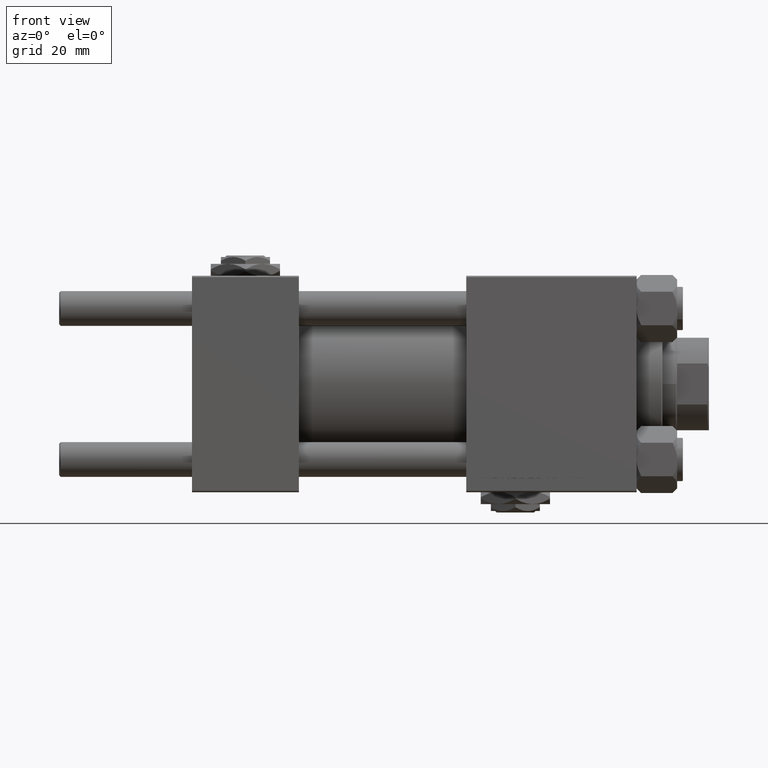
[diagram: clean part render]
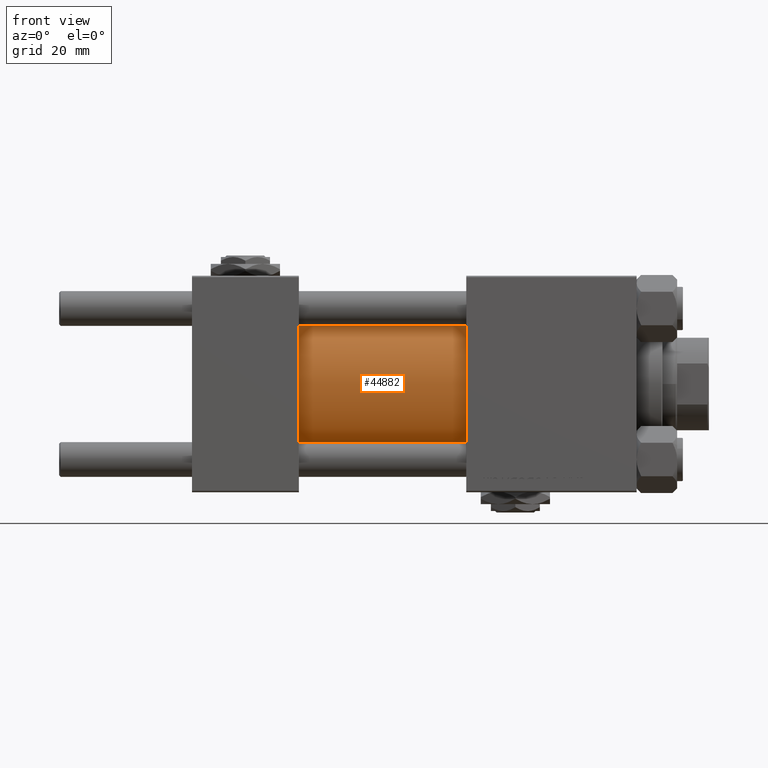
[diagram: same view with one face highlighted and labeled with its STEP entity id]
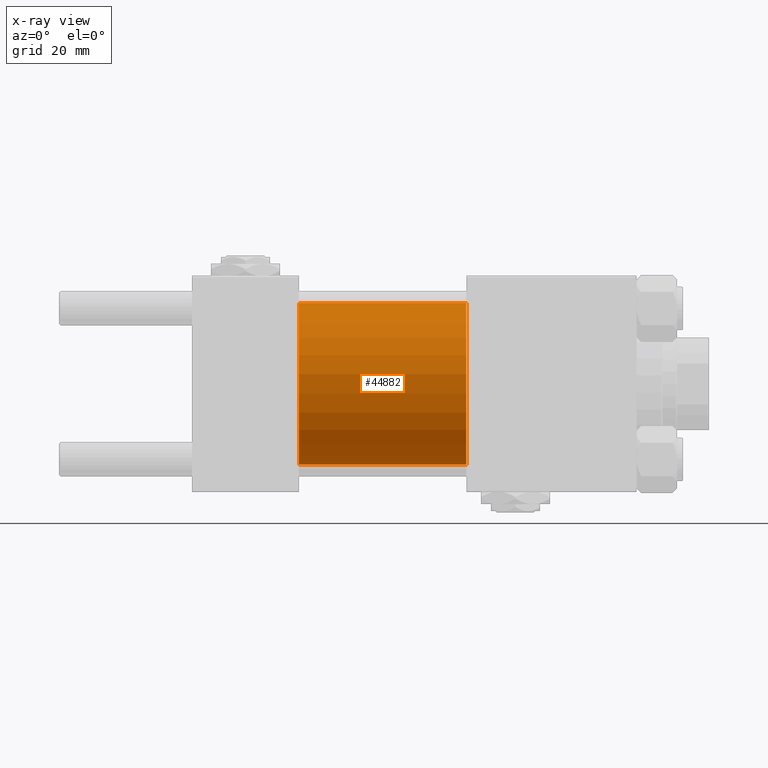
[diagram: x-ray of the same camera — body ghosted, the highlighted face saturated]
A machine part, front view. The second image highlights one B-rep face of the part: STEP entity #44882.
The next image is the same camera in x-ray: the body ghosted, the highlighted face saturated — about 2% of this face is hidden behind the body in this view.
In plain terms, the highlighted cylindrical surface (partial cylindrical patch) has radius 28 mm, axis along (-1, -0, -0).
Its self-contained STEP definition (entity closure, byte-faithful):
#201 = ORIENTED_EDGE ( 'NONE', *, *, #51417, .T. ) ;
#562 = DIRECTION ( 'NONE',  ( 1.000000000000000000, -0.000000000000000000, 0.000000000000000000 ) ) ;
#2357 = CARTESIAN_POINT ( 'NONE',  ( 95.00000000000000000, 0.000000000000000000, 28.00000000000000000 ) ) ;
#3750 = CARTESIAN_POINT ( 'NONE',  ( 95.00000000000000000, 3.429011037612588487E-15, -28.00000000000000000 ) ) ;
#5029 = VECTOR ( 'NONE', #43819, 1000.000000000000000 ) ;
#7856 = VERTEX_POINT ( 'NONE', #48802 ) ;
#7991 = DIRECTION ( 'NONE',  ( -1.000000000000000000, -0.000000000000000000, -0.000000000000000000 ) ) ;
#9387 = DIRECTION ( 'NONE',  ( 1.000000000000000000, 0.000000000000000000, 0.000000000000000000 ) ) ;
#11921 = FACE_OUTER_BOUND ( 'NONE', #28926, .T. ) ;
#13730 = CARTESIAN_POINT ( 'NONE',  ( 95.00000000000000000, 0.000000000000000000, 28.00000000000000000 ) ) ;
#15029 = VERTEX_POINT ( 'NONE', #42604 ) ;
#15296 = EDGE_CURVE ( 'NONE', #43571, #15029, #27603, .T. ) ;
#19982 = ORIENTED_EDGE ( 'NONE', *, *, #15296, .F. ) ;
#20156 = VECTOR ( 'NONE', #38092, 1000.000000000000000 ) ;
#20737 = DIRECTION ( 'NONE',  ( 0.000000000000000000, 0.000000000000000000, 1.000000000000000000 ) ) ;
#23735 = EDGE_CURVE ( 'NONE', #41612, #7856, #30228, .T. ) ;
#24234 = CYLINDRICAL_SURFACE ( 'NONE', #43386, 28.00000000000000000 ) ;
#26145 = DIRECTION ( 'NONE',  ( 0.000000000000000000, 0.000000000000000000, -1.000000000000000000 ) ) ;
#27023 = ORIENTED_EDGE ( 'NONE', *, *, #29132, .F. ) ;
#27603 = LINE ( 'NONE', #3750, #5029 ) ;
#28926 = EDGE_LOOP ( 'NONE', ( #19982, #27023, #32514, #201 ) ) ;
#29132 = EDGE_CURVE ( 'NONE', #41612, #43571, #44590, .T. ) ;
#30228 = LINE ( 'NONE', #13730, #20156 ) ;
#32514 = ORIENTED_EDGE ( 'NONE', *, *, #23735, .T. ) ;
#33993 = CARTESIAN_POINT ( 'NONE',  ( 95.00000000000000000, 0.000000000000000000, 0.000000000000000000 ) ) ;
#35399 = AXIS2_PLACEMENT_3D ( 'NONE', #33993, #9387, #26145 ) ;
#37322 = CARTESIAN_POINT ( 'NONE',  ( 95.00000000000000000, 3.429011037612588487E-15, -28.00000000000000000 ) ) ;
#38092 = DIRECTION ( 'NONE',  ( -1.000000000000000000, -0.000000000000000000, -0.000000000000000000 ) ) ;
#41612 = VERTEX_POINT ( 'NONE', #2357 ) ;
#42604 = CARTESIAN_POINT ( 'NONE',  ( 37.00000000000000000, 3.429011037612588487E-15, -28.00000000000000000 ) ) ;
#43386 = AXIS2_PLACEMENT_3D ( 'NONE', #43858, #7991, #47265 ) ;
#43571 = VERTEX_POINT ( 'NONE', #37322 ) ;
#43819 = DIRECTION ( 'NONE',  ( -1.000000000000000000, -0.000000000000000000, -0.000000000000000000 ) ) ;
#43858 = CARTESIAN_POINT ( 'NONE',  ( 95.00000000000000000, 0.000000000000000000, 0.000000000000000000 ) ) ;
#44590 = CIRCLE ( 'NONE', #35399, 28.00000000000000000 ) ;
#44882 = ADVANCED_FACE ( 'NONE', ( #11921 ), #24234, .T. ) ;
#45233 = CIRCLE ( 'NONE', #51087, 28.00000000000000000 ) ;
#47265 = DIRECTION ( 'NONE',  ( 0.000000000000000000, 0.000000000000000000, 1.000000000000000000 ) ) ;
#48738 = CARTESIAN_POINT ( 'NONE',  ( 37.00000000000000000, 0.000000000000000000, 0.000000000000000000 ) ) ;
#48802 = CARTESIAN_POINT ( 'NONE',  ( 37.00000000000000000, 0.000000000000000000, 28.00000000000000000 ) ) ;
#51087 = AXIS2_PLACEMENT_3D ( 'NONE', #48738, #562, #20737 ) ;
#51417 = EDGE_CURVE ( 'NONE', #7856, #15029, #45233, .T. ) ;